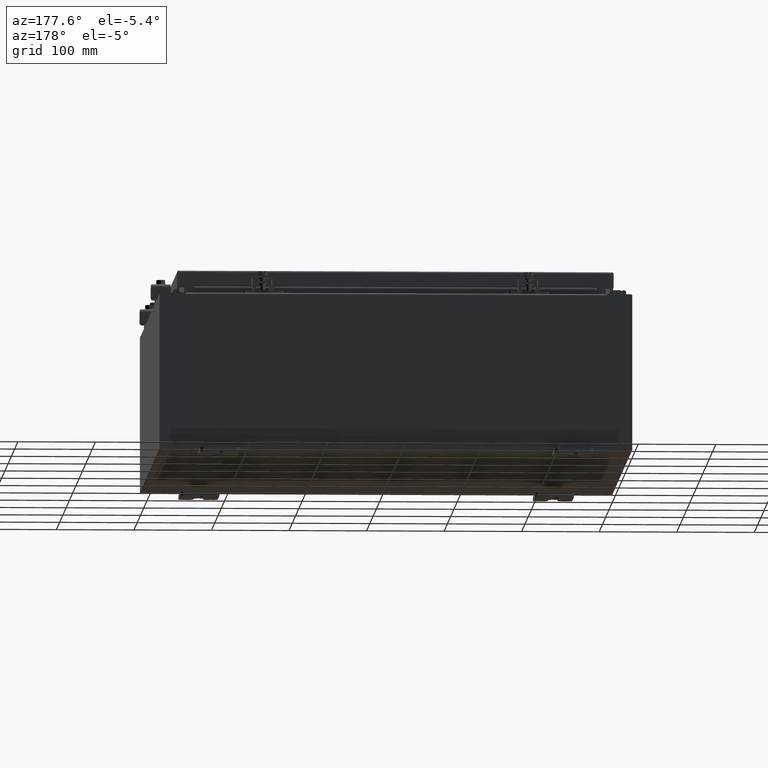
[diagram: clean part render]
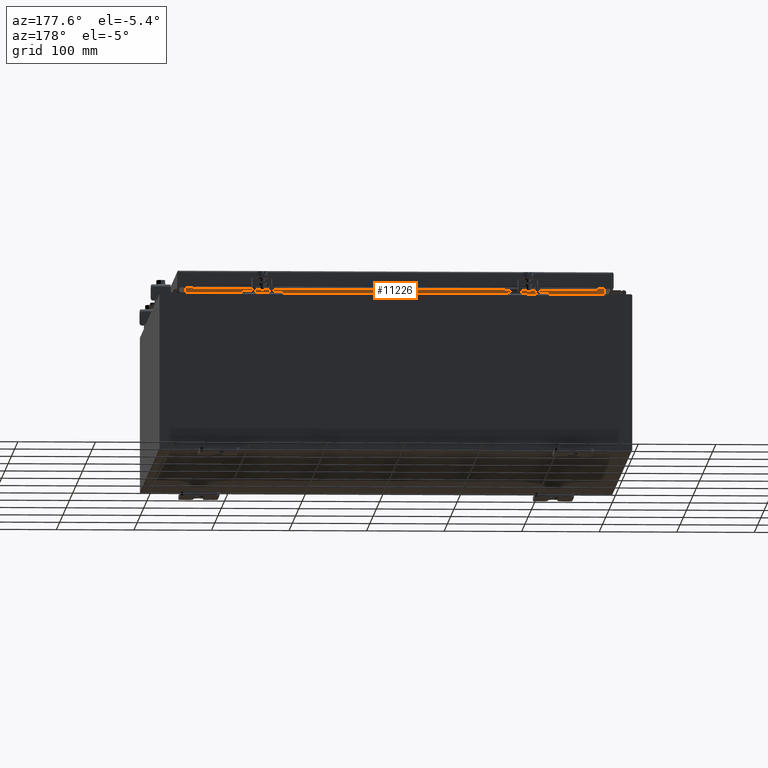
[diagram: same view with one face highlighted and labeled with its STEP entity id]
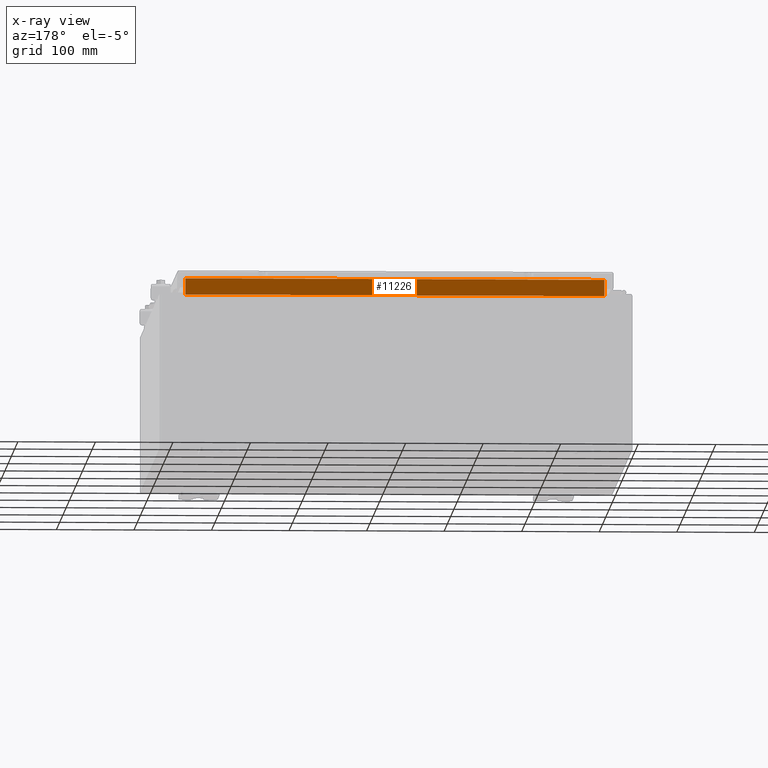
[diagram: x-ray of the same camera — body ghosted, the highlighted face saturated]
A machine part, auxiliary view. The second image highlights one B-rep face of the part: STEP entity #11226.
The next image is the same camera in x-ray: the body ghosted, the highlighted face saturated — about 0% of this face is hidden behind the body in this view.
In plain terms, the highlighted planar face has unit normal (0, 1, 0).
Its self-contained STEP definition (entity closure, byte-faithful):
#1393 = LINE ( 'NONE', #13956, #26872 ) ;
#2287 = CARTESIAN_POINT ( 'NONE',  ( -10.63720000000000200, -1.300299999999999300, 4.013000000000003500 ) ) ;
#3558 = CARTESIAN_POINT ( 'NONE',  ( 10.63720000000000200, -1.300299999999999300, 4.837600000000004600 ) ) ;
#4164 = LINE ( 'NONE', #2287, #10130 ) ;
#5869 = VECTOR ( 'NONE', #14403, 39.37007874015748100 ) ;
#6704 = CARTESIAN_POINT ( 'NONE',  ( 0.0000000000000000000, -1.300299999999999300, 0.0000000000000000000 ) ) ;
#8128 = ORIENTED_EDGE ( 'NONE', *, *, #21913, .F. ) ;
#8911 = ORIENTED_EDGE ( 'NONE', *, *, #23964, .F. ) ;
#9263 = DIRECTION ( 'NONE',  ( 0.0000000000000000000, 1.000000000000000000, 0.0000000000000000000 ) ) ;
#10130 = VECTOR ( 'NONE', #25205, 39.37007874015748100 ) ;
#10134 = EDGE_CURVE ( 'NONE', #28281, #11587, #4164, .T. ) ;
#10505 = AXIS2_PLACEMENT_3D ( 'NONE', #6704, #9263, #27065 ) ;
#10569 = VERTEX_POINT ( 'NONE', #24735 ) ;
#11226 = ADVANCED_FACE ( 'NONE', ( #27200 ), #21936, .T. ) ;
#11587 = VERTEX_POINT ( 'NONE', #15715 ) ;
#12043 = VERTEX_POINT ( 'NONE', #20029 ) ;
#13229 = CARTESIAN_POINT ( 'NONE',  ( -10.63720000000000400, -1.300299999999999300, 4.013000000000003500 ) ) ;
#13946 = ORIENTED_EDGE ( 'NONE', *, *, #24526, .F. ) ;
#13956 = CARTESIAN_POINT ( 'NONE',  ( 10.63720000000000200, -1.300299999999999300, 4.925300000000004500 ) ) ;
#14403 = DIRECTION ( 'NONE',  ( -0.0000000000000000000, -0.0000000000000000000, -1.000000000000000000 ) ) ;
#15637 = ORIENTED_EDGE ( 'NONE', *, *, #10134, .F. ) ;
#15715 = CARTESIAN_POINT ( 'NONE',  ( 10.63720000000000400, -1.300299999999999300, 4.013000000000003500 ) ) ;
#17064 = CARTESIAN_POINT ( 'NONE',  ( -10.63720000000000200, -1.300299999999999300, 4.000000000000004400 ) ) ;
#18498 = VECTOR ( 'NONE', #21372, 39.37007874015748100 ) ;
#19410 = LINE ( 'NONE', #17064, #5869 ) ;
#20029 = CARTESIAN_POINT ( 'NONE',  ( -10.63720000000000200, -1.300299999999999300, 4.837600000000004600 ) ) ;
#21372 = DIRECTION ( 'NONE',  ( -1.000000000000000000, -0.0000000000000000000, -0.0000000000000000000 ) ) ;
#21913 = EDGE_CURVE ( 'NONE', #12043, #28281, #19410, .T. ) ;
#21936 = PLANE ( 'NONE',  #10505 ) ;
#23964 = EDGE_CURVE ( 'NONE', #11587, #10569, #1393, .T. ) ;
#24526 = EDGE_CURVE ( 'NONE', #10569, #12043, #25235, .T. ) ;
#24735 = CARTESIAN_POINT ( 'NONE',  ( 10.63720000000000200, -1.300299999999999300, 4.837600000000004600 ) ) ;
#25143 = EDGE_LOOP ( 'NONE', ( #8128, #13946, #8911, #15637 ) ) ;
#25205 = DIRECTION ( 'NONE',  ( 1.000000000000000000, 0.0000000000000000000, -2.568202152506545800E-017 ) ) ;
#25235 = LINE ( 'NONE', #3558, #18498 ) ;
#26872 = VECTOR ( 'NONE', #31733, 39.37007874015748100 ) ;
#27065 = DIRECTION ( 'NONE',  ( 0.0000000000000000000, -0.0000000000000000000, 1.000000000000000000 ) ) ;
#27200 = FACE_OUTER_BOUND ( 'NONE', #25143, .T. ) ;
#28281 = VERTEX_POINT ( 'NONE', #13229 ) ;
#31733 = DIRECTION ( 'NONE',  ( -0.0000000000000000000, -0.0000000000000000000, 1.000000000000000000 ) ) ;